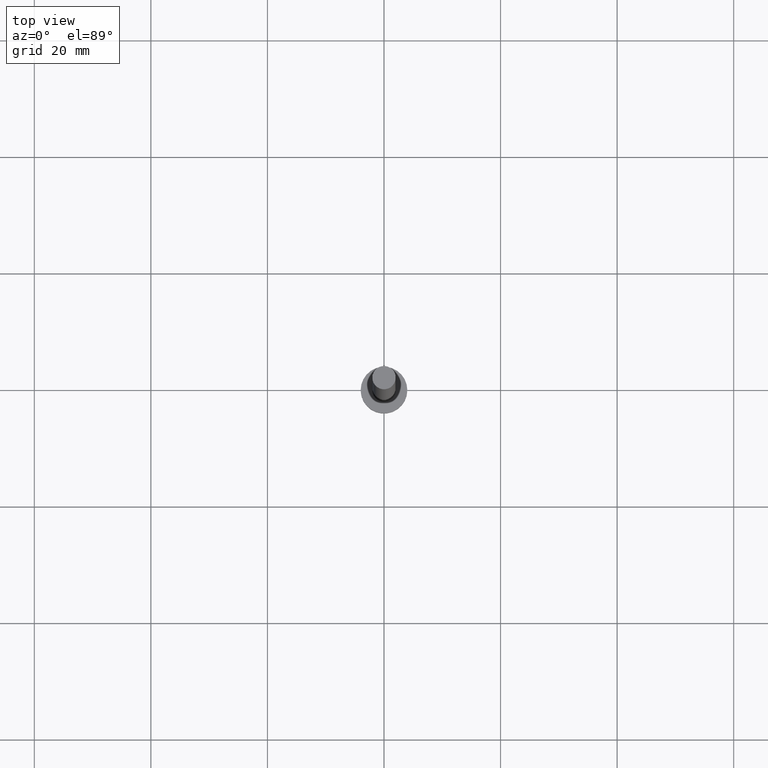
[diagram: clean part render]
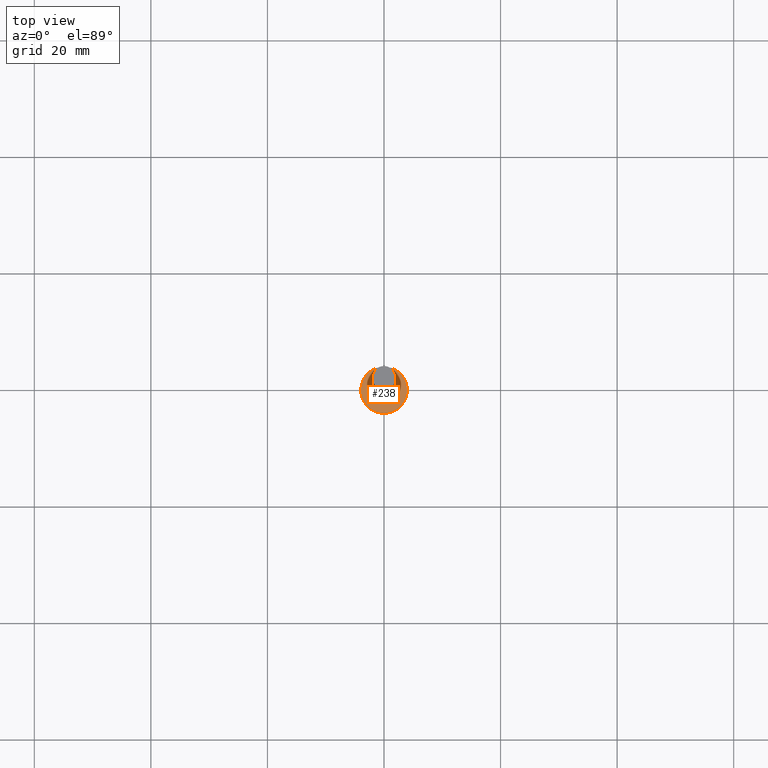
[diagram: same view with one face highlighted and labeled with its STEP entity id]
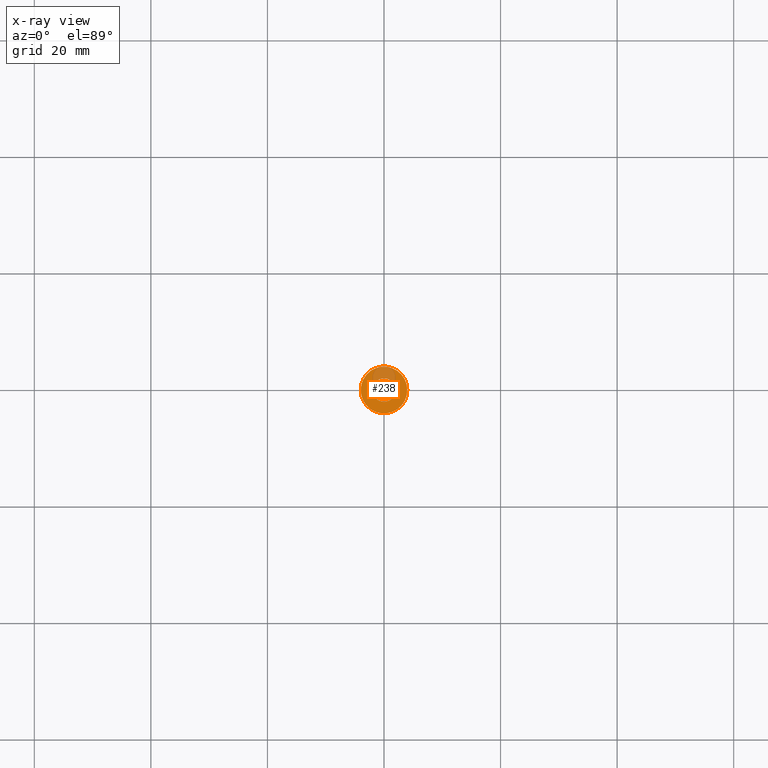
[diagram: x-ray of the same camera — body ghosted, the highlighted face saturated]
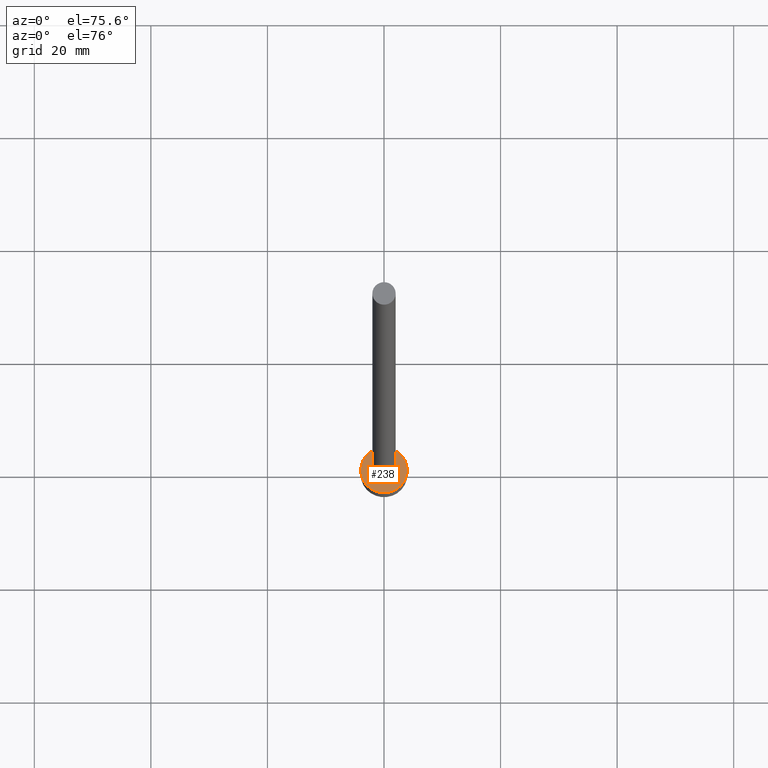
[diagram: same view with one face highlighted and labeled with its STEP entity id]
A machine part, top view. The second image highlights one B-rep face of the part: STEP entity #238.
The next image is the same camera in x-ray: the body ghosted, the highlighted face saturated — about 22% of this face is hidden behind the body in this view.
A second angle (auxiliary view) of the same face is appended — the face is thin or edge-on in the first view.
In plain terms, the highlighted planar face has unit normal (0, 0, 1).
Its self-contained STEP definition (entity closure, byte-faithful):
#5 = CARTESIAN_POINT ( 'NONE',  ( 0.000000000000000000, 0.000000000000000000, 3.000000000000000000 ) ) ;
#6 = EDGE_LOOP ( 'NONE', ( #243, #97 ) ) ;
#12 = CARTESIAN_POINT ( 'NONE',  ( 4.000000000000000000, 4.898587196589412829E-16, 3.000000000000000000 ) ) ;
#29 = DIRECTION ( 'NONE',  ( 1.000000000000000000, 0.000000000000000000, 0.000000000000000000 ) ) ;
#33 = ORIENTED_EDGE ( 'NONE', *, *, #245, .F. ) ;
#34 = CIRCLE ( 'NONE', #64, 4.000000000000000000 ) ;
#35 = CIRCLE ( 'NONE', #246, 2.000000000000000000 ) ;
#36 = DIRECTION ( 'NONE',  ( 1.000000000000000000, 0.000000000000000000, 0.000000000000000000 ) ) ;
#38 = DIRECTION ( 'NONE',  ( 0.000000000000000000, 0.000000000000000000, 1.000000000000000000 ) ) ;
#43 = DIRECTION ( 'NONE',  ( 1.000000000000000000, 0.000000000000000000, 0.000000000000000000 ) ) ;
#50 = VERTEX_POINT ( 'NONE', #248 ) ;
#53 = AXIS2_PLACEMENT_3D ( 'NONE', #5, #149, #73 ) ;
#54 = EDGE_LOOP ( 'NONE', ( #33, #80 ) ) ;
#61 = EDGE_CURVE ( 'NONE', #99, #152, #34, .T. ) ;
#64 = AXIS2_PLACEMENT_3D ( 'NONE', #76, #132, #29 ) ;
#73 = DIRECTION ( 'NONE',  ( 1.000000000000000000, 0.000000000000000000, 0.000000000000000000 ) ) ;
#76 = CARTESIAN_POINT ( 'NONE',  ( 0.000000000000000000, 0.000000000000000000, 3.000000000000000000 ) ) ;
#80 = ORIENTED_EDGE ( 'NONE', *, *, #111, .F. ) ;
#86 = CARTESIAN_POINT ( 'NONE',  ( 0.000000000000000000, 0.000000000000000000, 3.000000000000000000 ) ) ;
#87 = FACE_OUTER_BOUND ( 'NONE', #6, .T. ) ;
#97 = ORIENTED_EDGE ( 'NONE', *, *, #61, .T. ) ;
#99 = VERTEX_POINT ( 'NONE', #12 ) ;
#100 = DIRECTION ( 'NONE',  ( 0.000000000000000000, 0.000000000000000000, 1.000000000000000000 ) ) ;
#102 = CARTESIAN_POINT ( 'NONE',  ( -4.000000000000000000, 0.000000000000000000, 3.000000000000000000 ) ) ;
#106 = FACE_BOUND ( 'NONE', #54, .T. ) ;
#111 = EDGE_CURVE ( 'NONE', #187, #50, #193, .T. ) ;
#119 = PLANE ( 'NONE',  #235 ) ;
#125 = AXIS2_PLACEMENT_3D ( 'NONE', #86, #38, #36 ) ;
#132 = DIRECTION ( 'NONE',  ( 0.000000000000000000, 0.000000000000000000, 1.000000000000000000 ) ) ;
#149 = DIRECTION ( 'NONE',  ( 0.000000000000000000, 0.000000000000000000, 1.000000000000000000 ) ) ;
#152 = VERTEX_POINT ( 'NONE', #102 ) ;
#173 = DIRECTION ( 'NONE',  ( 1.000000000000000000, 0.000000000000000000, -0.000000000000000000 ) ) ;
#178 = CARTESIAN_POINT ( 'NONE',  ( 0.000000000000000000, 0.000000000000000000, 3.000000000000000000 ) ) ;
#187 = VERTEX_POINT ( 'NONE', #214 ) ;
#190 = CARTESIAN_POINT ( 'NONE',  ( 0.000000000000000000, 0.000000000000000000, 3.000000000000000000 ) ) ;
#193 = CIRCLE ( 'NONE', #125, 2.000000000000000000 ) ;
#200 = DIRECTION ( 'NONE',  ( 0.000000000000000000, 0.000000000000000000, 1.000000000000000000 ) ) ;
#202 = CIRCLE ( 'NONE', #53, 4.000000000000000000 ) ;
#214 = CARTESIAN_POINT ( 'NONE',  ( 2.000000000000000000, 2.449293598294705921E-16, 3.000000000000000000 ) ) ;
#235 = AXIS2_PLACEMENT_3D ( 'NONE', #190, #100, #173 ) ;
#238 = ADVANCED_FACE ( 'NONE', ( #106, #87 ), #119, .T. ) ;
#243 = ORIENTED_EDGE ( 'NONE', *, *, #249, .T. ) ;
#245 = EDGE_CURVE ( 'NONE', #50, #187, #35, .T. ) ;
#246 = AXIS2_PLACEMENT_3D ( 'NONE', #178, #200, #43 ) ;
#248 = CARTESIAN_POINT ( 'NONE',  ( -2.000000000000000000, 0.000000000000000000, 3.000000000000000000 ) ) ;
#249 = EDGE_CURVE ( 'NONE', #152, #99, #202, .T. ) ;